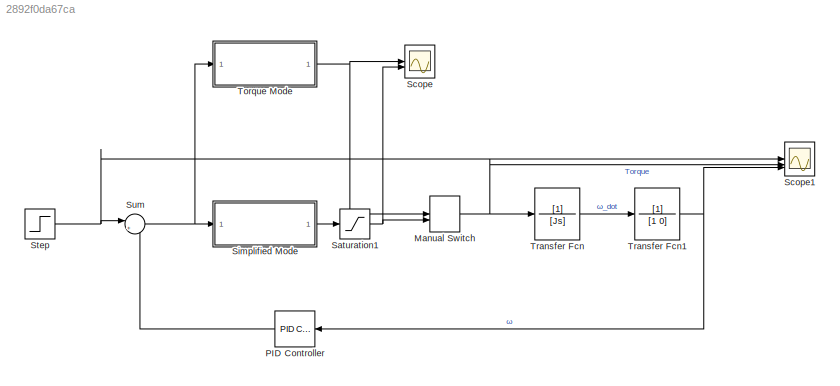
MODEL slx_2892f0da67ca
KIND model
CONFIG AbsTol = auto
CONFIG EnableMultiTasking = off
CONFIG FixedStep = auto
CONFIG MaxStep = auto
CONFIG MinStep = auto
CONFIG RelTol = 1e-3
CONFIG SampleTimeConstraint = Unconstrained
CONFIG SolverName = VariableStepAuto
CONFIG StartTime = 0.0
CONFIG StopTime = 100
WORKSPACE source: mxarray member
WORKSPACE K_in = 1120.00158266
BLOCK [ManualSwitch] Manual Switch
  CurrentSetting = 0
BLOCK [Reference] PID Controller  REF=slpidlib/PID Controller
  LibrarySourceBlock = simulink/Continuous/PID Controller
  SourceBlock = slpidlib/PID Controller
  SourceType = PID 1dof
BLOCK [Saturate] Saturation1
  LowerLimit = -Kt
  UpperLimit = Kt
BLOCK [Scope] Scope
  Floating = off
  NumInputPorts = 2
  ScopeSpecificationString = Simulink.scopes.TimeScopeBlockCfg('CurrentConfiguration', extmgr.ConfigurationSet(extmgr.Configuration('Core','General UI',true),extmgr.Configuration('Core','Source UI',true),extmgr.Configuration('Sources','WiredSimulink',true,'DataLoggingVariableName','ScopeData2'),extmgr.Configuration('Visuals','Time Domain',true,'SerializedDisplays',{struct('MinYLimReal','-0.00844','MaxYLimReal','0.07592','YLab...<+1472ch>
BLOCK [Scope] Scope1
  Floating = off
  NumInputPorts = 3
  ScopeSpecificationString = Simulink.scopes.TimeScopeBlockCfg('CurrentConfiguration', extmgr.ConfigurationSet(extmgr.Configuration('Core','General UI',true),extmgr.Configuration('Core','Source UI',true),extmgr.Configuration('Sources','WiredSimulink',true,'DataLoggingVariableName','ScopeData1'),extmgr.Configuration('Visuals','Time Domain',true,'SerializedDisplays',{struct('MinYLimReal','-1.25','MaxYLimReal','11.25','YLabelRea...<+2869ch>
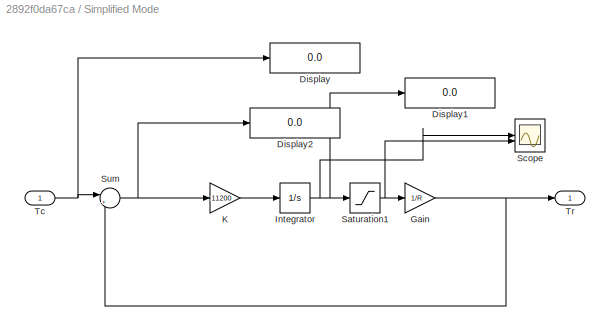
BLOCK [SubSystem] Simplified Mode
BLOCK [Display] Simplified Mode/Display
  Decimation = 1
BLOCK [Display] Simplified Mode/Display1
  Decimation = 1
BLOCK [Display] Simplified Mode/Display2
  Decimation = 1
BLOCK [Gain] Simplified Mode/Gain
  Gain = 1/R
BLOCK [Integrator] Simplified Mode/Integrator
BLOCK [Gain] Simplified Mode/K
  Gain = 11200
BLOCK [Saturate] Simplified Mode/Saturation1
  LowerLimit = -11
  UpperLimit = 11
BLOCK [Scope] Simplified Mode/Scope
  Floating = off
  NumInputPorts = 2
  ScopeSpecificationString = Simulink.scopes.TimeScopeBlockCfg('CurrentConfiguration', extmgr.ConfigurationSet(extmgr.Configuration('Core','General UI',true),extmgr.Configuration('Core','Source UI',true),extmgr.Configuration('Sources','WiredSimulink',true,'DataLoggingVariableName','ScopeData2'),extmgr.Configuration('Visuals','Time Domain',true,'SerializedDisplays',{struct('MinYLimReal','-97.83858','MaxYLimReal','72.3175','YLa...<+1517ch>
BLOCK [Sum] Simplified Mode/Sum
  Inputs = |+-
BLOCK [Inport] Simplified Mode/Tc
BLOCK [Outport] Simplified Mode/Tr
BLOCK [Step] Step
  After = 10
  SampleTime = 0
BLOCK [Sum] Sum
  Inputs = |+-
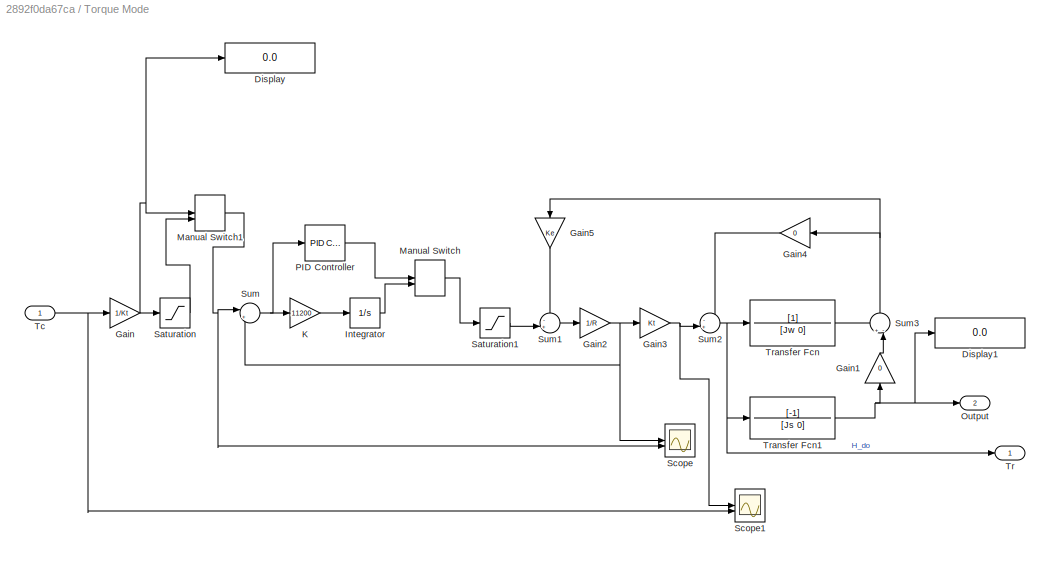
BLOCK [SubSystem] Torque Mode
BLOCK [Display] Torque Mode/Display
  Decimation = 1
BLOCK [Display] Torque Mode/Display1
  Decimation = 1
BLOCK [Gain] Torque Mode/Gain
  Gain = 1/Kt
BLOCK [Gain] Torque Mode/Gain1
  Gain = 0
  NameLocation = right
BLOCK [Gain] Torque Mode/Gain2
  Gain = 1/R
BLOCK [Gain] Torque Mode/Gain3
  Gain = Kt
BLOCK [Gain] Torque Mode/Gain4
  Gain = 0
BLOCK [Gain] Torque Mode/Gain5
  Gain = Ke
  NameLocation = left
BLOCK [Integrator] Torque Mode/Integrator
BLOCK [Gain] Torque Mode/K
  Gain = 11200
BLOCK [ManualSwitch] Torque Mode/Manual Switch
  CurrentSetting = 0
BLOCK [ManualSwitch] Torque Mode/Manual Switch1
BLOCK [Outport] Torque Mode/Output
  Port = 2
BLOCK [Reference] Torque Mode/PID Controller  REF=slpidlib/PID Controller
  LibrarySourceBlock = simulink/Continuous/PID Controller
  SourceBlock = slpidlib/PID Controller
  SourceType = PID 1dof
BLOCK [Saturate] Torque Mode/Saturation
  LowerLimit = -1
  UpperLimit = 1
BLOCK [Saturate] Torque Mode/Saturation1
  LowerLimit = -11
  UpperLimit = 11
BLOCK [Scope] Torque Mode/Scope
  Floating = off
  NumInputPorts = 2
  ScopeSpecificationString = Simulink.scopes.TimeScopeBlockCfg('CurrentConfiguration', extmgr.ConfigurationSet(extmgr.Configuration('Core','General UI',true),extmgr.Configuration('Core','Source UI',true),extmgr.Configuration('Sources','WiredSimulink',true,'DataLoggingVariableName','ScopeData1'),extmgr.Configuration('Visuals','Time Domain',true,'SerializedDisplays',{struct('MinYLimReal','-0.01852','MaxYLimReal','0.16667','YLab...<+1515ch>
BLOCK [Scope] Torque Mode/Scope1
  Floating = off
  NumInputPorts = 2
  ScopeSpecificationString = Simulink.scopes.TimeScopeBlockCfg('CurrentConfiguration', extmgr.ConfigurationSet(extmgr.Configuration('Core','General UI',true),extmgr.Configuration('Core','Source UI',true),extmgr.Configuration('Sources','WiredSimulink',true),extmgr.Configuration('Visuals','Time Domain',true,'SerializedDisplays',{struct('MinYLimReal','-0.00125','MaxYLimReal','0.01125','YLabelReal','','MinYLimMag','0.00000','MaxY...<+1454ch>
BLOCK [Sum] Torque Mode/Sum
  Inputs = |+-
BLOCK [Sum] Torque Mode/Sum1
  Inputs = -+|
BLOCK [Sum] Torque Mode/Sum2
  Inputs = -+|
BLOCK [Sum] Torque Mode/Sum3
  Inputs = +-|
  NameLocation = right
BLOCK [Inport] Torque Mode/Tc
BLOCK [Outport] Torque Mode/Tr
BLOCK [TransferFcn] Torque Mode/Transfer Fcn
  Denominator = [Jw 0]
BLOCK [TransferFcn] Torque Mode/Transfer Fcn1
  Denominator = [Js 0]
  Numerator = [-1]
BLOCK [TransferFcn] Transfer Fcn
  Denominator = [Js]
BLOCK [TransferFcn] Transfer Fcn1
  Denominator = [1 0]
NET Manual Switch:1 -> Scope1:2, Transfer Fcn:1
LINE PID Controller:1 -> Sum:2
NET Saturation1:1 -> Manual Switch:2, Scope:2
NET Simplified Mode/Gain:1 -> Simplified Mode/Sum:2, Simplified Mode/Tr:1
NET Simplified Mode/Integrator:1 -> Simplified Mode/Display1:1, Simplified Mode/Saturation1:1, Simplified Mode/Scope:1
LINE Simplified Mode/K:1 -> Simplified Mode/Integrator:1
NET Simplified Mode/Saturation1:1 -> Simplified Mode/Gain:1, Simplified Mode/Scope:2
NET Simplified Mode/Sum:1 -> Simplified Mode/Display2:1, Simplified Mode/K:1
NET Simplified Mode/Tc:1 -> Simplified Mode/Display:1, Simplified Mode/Sum:1
LINE Simplified Mode:1 -> Saturation1:1
NET Step:1 -> Scope1:1, Sum:1
NET Sum:1 -> Simplified Mode:1, Torque Mode:1
LINE Torque Mode/Gain1:1 -> Torque Mode/Sum3:2
NET Torque Mode/Gain2:1 -> Torque Mode/Gain3:1, Torque Mode/Scope:1, Torque Mode/Sum:2
NET Torque Mode/Gain3:1 -> Torque Mode/Scope1:1, Torque Mode/Sum2:2
LINE Torque Mode/Gain4:1 -> Torque Mode/Sum2:1
LINE Torque Mode/Gain5:1 -> Torque Mode/Sum1:1
NET Torque Mode/Gain:1 -> Torque Mode/Display:1, Torque Mode/Manual Switch1:1, Torque Mode/Saturation:1
LINE Torque Mode/Integrator:1 -> Torque Mode/Manual Switch:2
LINE Torque Mode/K:1 -> Torque Mode/Integrator:1
NET Torque Mode/Manual Switch1:1 -> Torque Mode/Scope:2, Torque Mode/Sum:1
LINE Torque Mode/Manual Switch:1 -> Torque Mode/Saturation1:1
LINE Torque Mode/PID Controller:1 -> Torque Mode/Manual Switch:1
LINE Torque Mode/Saturation1:1 -> Torque Mode/Sum1:2
LINE Torque Mode/Saturation:1 -> Torque Mode/Manual Switch1:2
LINE Torque Mode/Sum1:1 -> Torque Mode/Gain2:1
NET Torque Mode/Sum2:1 -> Torque Mode/Tr:1, Torque Mode/Transfer Fcn1:1, Torque Mode/Transfer Fcn:1
NET Torque Mode/Sum3:1 -> Torque Mode/Gain4:1, Torque Mode/Gain5:1
NET Torque Mode/Sum:1 -> Torque Mode/K:1, Torque Mode/PID Controller:1
NET Torque Mode/Tc:1 -> Torque Mode/Gain:1, Torque Mode/Scope1:2
NET Torque Mode/Transfer Fcn1:1 -> Torque Mode/Display1:1, Torque Mode/Gain1:1, Torque Mode/Output:1
LINE Torque Mode/Transfer Fcn:1 -> Torque Mode/Sum3:1
NET Torque Mode:1 -> Manual Switch:1, Scope:1
NET Transfer Fcn1:1 -> PID Controller:1, Scope1:3
LINE Transfer Fcn:1 -> Transfer Fcn1:1
note: NET lines group one-source signal fan-out (src -> all destinations, sorted); 1:1 wires keep LINE
